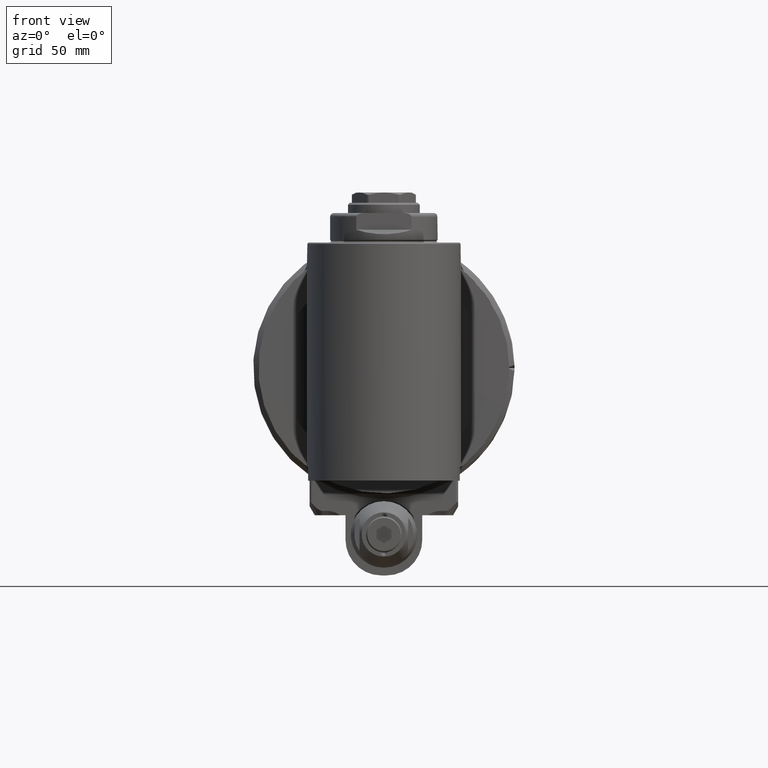
[diagram: clean part render]
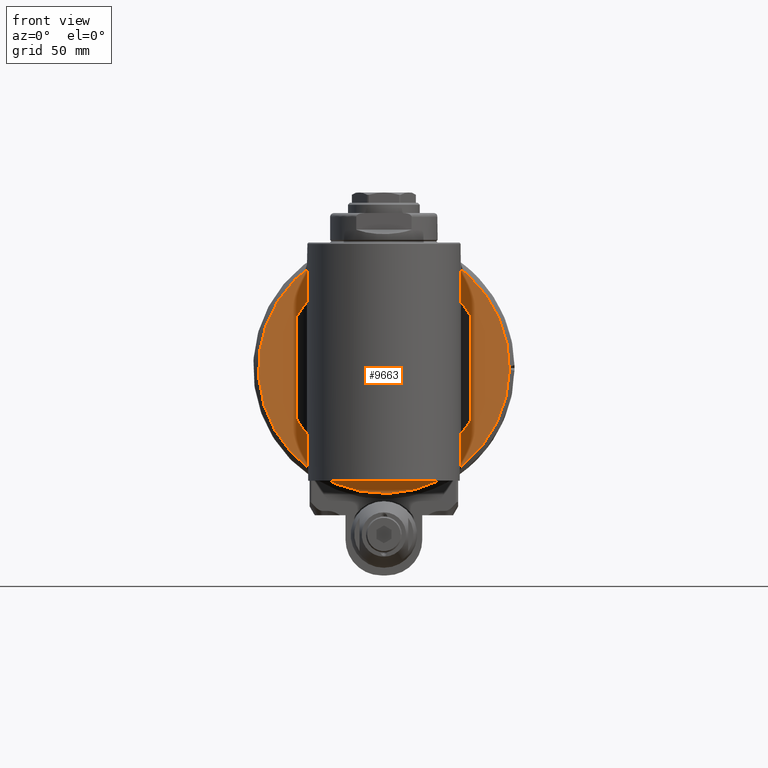
[diagram: same view with one face highlighted and labeled with its STEP entity id]
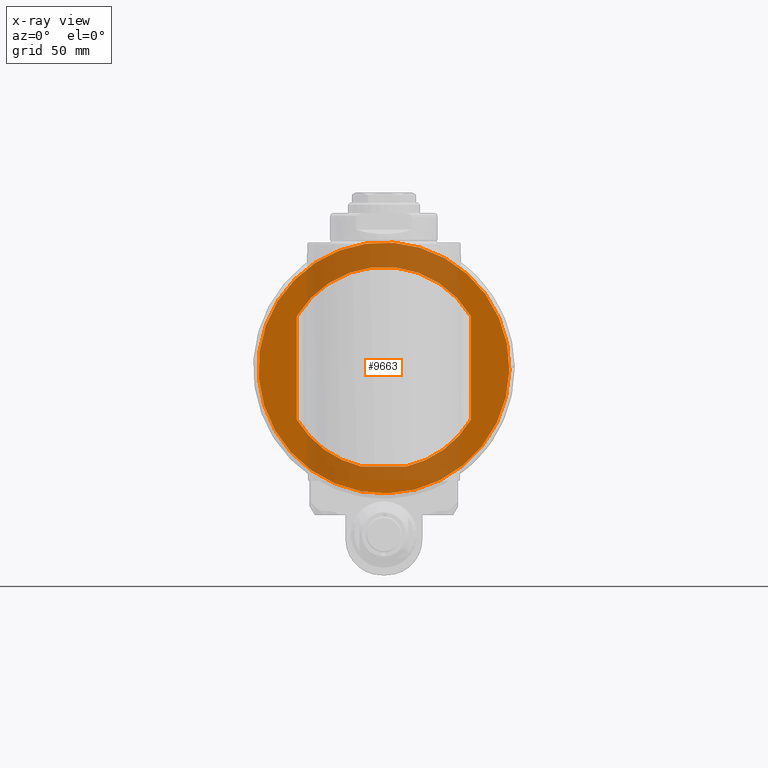
[diagram: x-ray of the same camera — body ghosted, the highlighted face saturated]
A machine part, front view. The second image highlights one B-rep face of the part: STEP entity #9663.
The next image is the same camera in x-ray: the body ghosted, the highlighted face saturated — about 39% of this face is hidden behind the body in this view.
In plain terms, the highlighted planar face has unit normal (0, -1, -0).
Its self-contained STEP definition (entity closure, byte-faithful):
#371=FACE_BOUND('',#1394,.T.);
#505=PLANE('',#10328);
#793=FACE_OUTER_BOUND('',#1393,.T.);
#1393=EDGE_LOOP('',(#6544));
#1394=EDGE_LOOP('',(#6545,#6546,#6547,#6548,#6549,#6550));
#2077=LINE('',#14654,#2775);
#2080=LINE('',#14674,#2778);
#2081=LINE('',#14678,#2779);
#2775=VECTOR('',#11550,17.66352173266);
#2778=VECTOR('',#11561,40.21193852577);
#2779=VECTOR('',#11566,40.21193852577);
#3467=CIRCLE('',#10329,49.);
#3468=CIRCLE('',#10330,39.5);
#3469=CIRCLE('',#10331,39.5);
#3470=CIRCLE('',#10332,39.5);
#4049=VERTEX_POINT('',#14652);
#4050=VERTEX_POINT('',#14653);
#4054=VERTEX_POINT('',#14668);
#4055=VERTEX_POINT('',#14670);
#4056=VERTEX_POINT('',#14671);
#4057=VERTEX_POINT('',#14673);
#4058=VERTEX_POINT('',#14676);
#5026=EDGE_CURVE('',#4049,#4050,#2077,.T.);
#5032=EDGE_CURVE('',#4054,#4054,#3467,.T.);
#5033=EDGE_CURVE('',#4055,#4056,#3468,.T.);
#5034=EDGE_CURVE('',#4057,#4056,#2080,.T.);
#5035=EDGE_CURVE('',#4057,#4049,#3469,.T.);
#5036=EDGE_CURVE('',#4050,#4058,#3470,.T.);
#5037=EDGE_CURVE('',#4055,#4058,#2081,.T.);
#6544=ORIENTED_EDGE('',*,*,#5032,.T.);
#6545=ORIENTED_EDGE('',*,*,#5033,.T.);
#6546=ORIENTED_EDGE('',*,*,#5034,.F.);
#6547=ORIENTED_EDGE('',*,*,#5035,.T.);
#6548=ORIENTED_EDGE('',*,*,#5026,.T.);
#6549=ORIENTED_EDGE('',*,*,#5036,.T.);
#6550=ORIENTED_EDGE('',*,*,#5037,.F.);
#9663=ADVANCED_FACE('',(#793,#371),#505,.T.);
#10328=AXIS2_PLACEMENT_3D('',#14667,#11555,#11556);
#10329=AXIS2_PLACEMENT_3D('',#14669,#11557,#11558);
#10330=AXIS2_PLACEMENT_3D('',#14672,#11559,#11560);
#10331=AXIS2_PLACEMENT_3D('',#14675,#11562,#11563);
#10332=AXIS2_PLACEMENT_3D('',#14677,#11564,#11565);
#11550=DIRECTION('',(0.,0.,1.));
#11555=DIRECTION('center_axis',(0.,-1.,0.));
#11556=DIRECTION('ref_axis',(-1.,0.,0.));
#11557=DIRECTION('center_axis',(0.,-1.,0.));
#11558=DIRECTION('ref_axis',(-0.0871557427476639,0.,0.996194698091745));
#11559=DIRECTION('center_axis',(0.,1.,0.));
#11560=DIRECTION('ref_axis',(0.509011880072991,0.,0.860759493670885));
#11561=DIRECTION('',(1.,0.,0.));
#11562=DIRECTION('center_axis',(0.,1.,0.));
#11563=DIRECTION('ref_axis',(-0.509011880072991,0.,-0.860759493670885));
#11564=DIRECTION('center_axis',(0.,1.,0.));
#11565=DIRECTION('ref_axis',(-0.974683544303807,0.,0.223588882691802));
#11566=DIRECTION('',(-1.,0.,0.));
#14652=CARTESIAN_POINT('',(-49.33995821208,40.5,-8.831760866328));
#14653=CARTESIAN_POINT('',(-49.33995821208,40.5,8.831760866328));
#14654=CARTESIAN_POINT('',(-49.33995821208,40.5,-8.831760866328));
#14667=CARTESIAN_POINT('Origin',(-10.83995821208,40.5,0.));
#14668=CARTESIAN_POINT('',(-15.11058960672,40.5,48.8135402065));
#14669=CARTESIAN_POINT('Origin',(-10.83995821208,40.5,0.));
#14670=CARTESIAN_POINT('',(9.266011050802,40.5,34.));
#14671=CARTESIAN_POINT('',(9.266011050801,40.5,-34.));
#14672=CARTESIAN_POINT('Origin',(-10.83995821208,40.5,0.));
#14673=CARTESIAN_POINT('',(-30.94592747497,40.5,-34.));
#14674=CARTESIAN_POINT('',(-30.94592747497,40.5,-34.));
#14675=CARTESIAN_POINT('Origin',(-10.83995821208,40.5,0.));
#14676=CARTESIAN_POINT('',(-30.94592747497,40.5,34.));
#14677=CARTESIAN_POINT('Origin',(-10.83995821208,40.5,0.));
#14678=CARTESIAN_POINT('',(9.266011050802,40.5,34.));